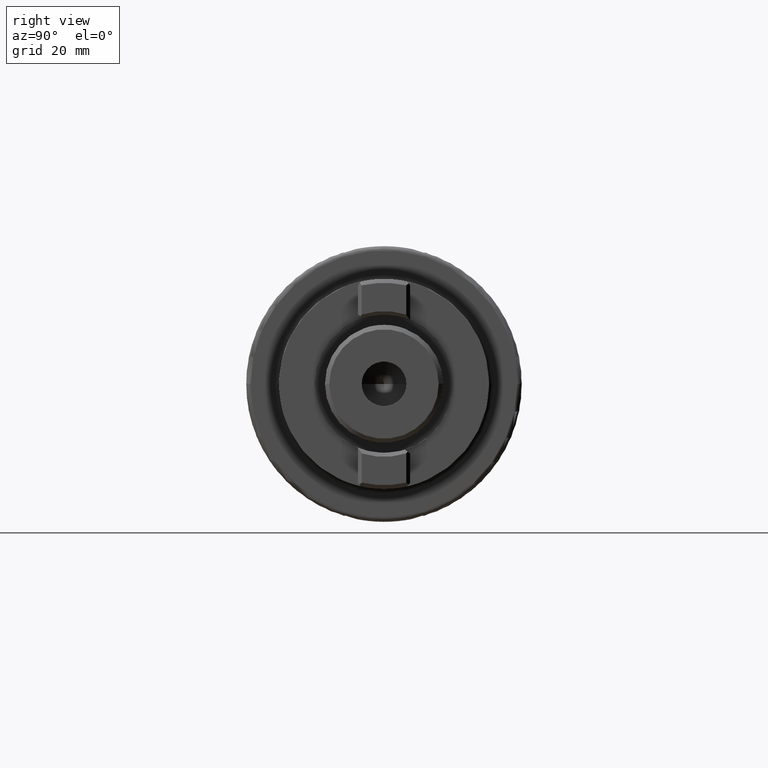
[diagram: clean part render]
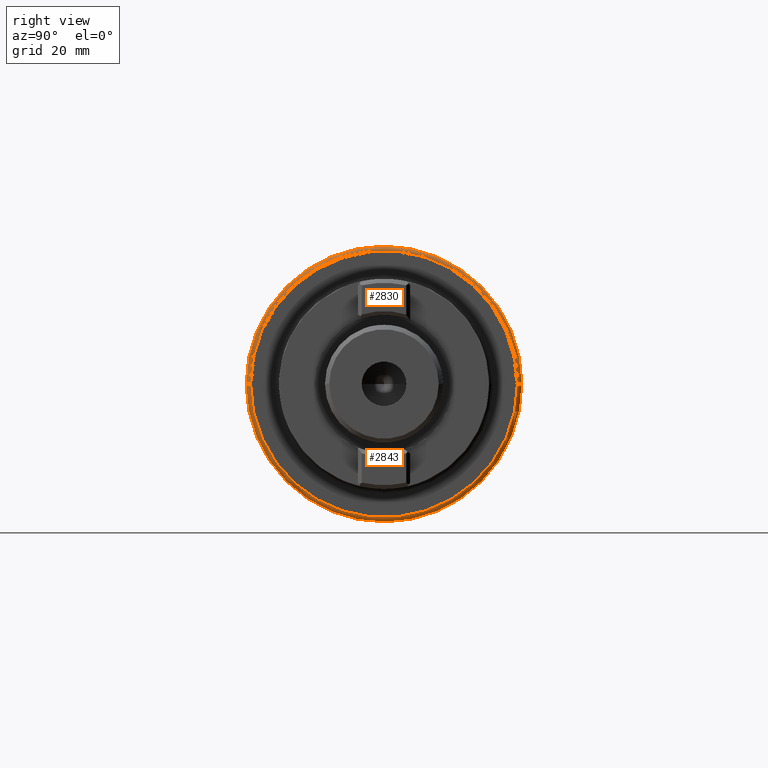
[diagram: same view with one multi-face feature highlighted, each face labeled with its STEP entity id]
A machine part, right view. The highlighted faces form ONE feature: a constant-radius fillet chain: 2 tangent blend faces with common blend radius 1 mm. The faces share edges in the B-rep.
Their STEP definitions:
[1] entity #2830 (Torus):
#792=CARTESIAN_POINT('',(2.6E1,0.E0,0.E0));
#793=DIRECTION('',(1.E0,0.E0,0.E0));
#794=DIRECTION('',(0.E0,1.E0,0.E0));
#795=AXIS2_PLACEMENT_3D('',#792,#793,#794);
#816=CARTESIAN_POINT('',(2.7E1,0.E0,0.E0));
#817=DIRECTION('',(1.E0,0.E0,0.E0));
#818=DIRECTION('',(0.E0,1.E0,0.E0));
#819=AXIS2_PLACEMENT_3D('',#816,#817,#818);
#821=CARTESIAN_POINT('',(2.6E1,3.04875E1,0.E0));
#822=DIRECTION('',(0.E0,0.E0,1.E0));
#823=DIRECTION('',(1.E0,0.E0,0.E0));
#824=AXIS2_PLACEMENT_3D('',#821,#822,#823);
#826=CARTESIAN_POINT('',(2.6E1,-3.04875E1,0.E0));
#827=DIRECTION('',(0.E0,0.E0,-1.E0));
#828=DIRECTION('',(1.E0,0.E0,0.E0));
#829=AXIS2_PLACEMENT_3D('',#826,#827,#828);
#1518=CARTESIAN_POINT('',(2.6E1,3.14875E1,0.E0));
#1519=VERTEX_POINT('',#1518);
#1520=CARTESIAN_POINT('',(2.6E1,-3.14875E1,0.E0));
#1521=VERTEX_POINT('',#1520);
#1588=CARTESIAN_POINT('',(2.7E1,3.04875E1,0.E0));
#1589=VERTEX_POINT('',#1588);
#1590=CARTESIAN_POINT('',(2.7E1,-3.04875E1,0.E0));
#1591=VERTEX_POINT('',#1590);
#2816=CARTESIAN_POINT('',(2.6E1,0.E0,0.E0));
#2817=DIRECTION('',(1.E0,0.E0,0.E0));
#2818=DIRECTION('',(0.E0,-1.E0,0.E0));
#2819=AXIS2_PLACEMENT_3D('',#2816,#2817,#2818);
#2820=TOROIDAL_SURFACE('',#2819,3.04875E1,1.E0);
#2822=ORIENTED_EDGE('',*,*,#2821,.F.);
#2824=ORIENTED_EDGE('',*,*,#2823,.T.);
#2826=ORIENTED_EDGE('',*,*,#2825,.T.);
#2827=ORIENTED_EDGE('',*,*,#2807,.F.);
#2828=EDGE_LOOP('',(#2822,#2824,#2826,#2827));
#2829=FACE_OUTER_BOUND('',#2828,.F.);
#2830=ADVANCED_FACE('',(#2829),#2820,.T.);
#796=CIRCLE('',#795,3.14875E1);
#820=CIRCLE('',#819,3.04875E1);
#825=CIRCLE('',#824,1.E0);
#830=CIRCLE('',#829,1.E0);
#2807=EDGE_CURVE('',#1519,#1521,#796,.T.);
#2821=EDGE_CURVE('',#1589,#1519,#825,.T.);
#2823=EDGE_CURVE('',#1589,#1591,#820,.T.);
#2825=EDGE_CURVE('',#1591,#1521,#830,.T.);
[2] entity #2843 (Torus):
#255=CARTESIAN_POINT('',(2.6E1,0.E0,0.E0));
#256=DIRECTION('',(-1.E0,0.E0,0.E0));
#257=DIRECTION('',(0.E0,1.E0,0.E0));
#258=AXIS2_PLACEMENT_3D('',#255,#256,#257);
#821=CARTESIAN_POINT('',(2.6E1,3.04875E1,0.E0));
#822=DIRECTION('',(0.E0,0.E0,1.E0));
#823=DIRECTION('',(1.E0,0.E0,0.E0));
#824=AXIS2_PLACEMENT_3D('',#821,#822,#823);
#826=CARTESIAN_POINT('',(2.6E1,-3.04875E1,0.E0));
#827=DIRECTION('',(0.E0,0.E0,-1.E0));
#828=DIRECTION('',(1.E0,0.E0,0.E0));
#829=AXIS2_PLACEMENT_3D('',#826,#827,#828);
#831=CARTESIAN_POINT('',(2.7E1,0.E0,0.E0));
#832=DIRECTION('',(-1.E0,0.E0,0.E0));
#833=DIRECTION('',(0.E0,1.E0,0.E0));
#834=AXIS2_PLACEMENT_3D('',#831,#832,#833);
#1518=CARTESIAN_POINT('',(2.6E1,3.14875E1,0.E0));
#1519=VERTEX_POINT('',#1518);
#1520=CARTESIAN_POINT('',(2.6E1,-3.14875E1,0.E0));
#1521=VERTEX_POINT('',#1520);
#1588=CARTESIAN_POINT('',(2.7E1,3.04875E1,0.E0));
#1589=VERTEX_POINT('',#1588);
#1590=CARTESIAN_POINT('',(2.7E1,-3.04875E1,0.E0));
#1591=VERTEX_POINT('',#1590);
#2831=CARTESIAN_POINT('',(2.6E1,0.E0,0.E0));
#2832=DIRECTION('',(1.E0,0.E0,0.E0));
#2833=DIRECTION('',(0.E0,-1.E0,0.E0));
#2834=AXIS2_PLACEMENT_3D('',#2831,#2832,#2833);
#2835=TOROIDAL_SURFACE('',#2834,3.04875E1,1.E0);
#2836=ORIENTED_EDGE('',*,*,#2821,.T.);
#2837=ORIENTED_EDGE('',*,*,#2098,.T.);
#2838=ORIENTED_EDGE('',*,*,#2825,.F.);
#2840=ORIENTED_EDGE('',*,*,#2839,.F.);
#2841=EDGE_LOOP('',(#2836,#2837,#2838,#2840));
#2842=FACE_OUTER_BOUND('',#2841,.F.);
#2843=ADVANCED_FACE('',(#2842),#2835,.T.);
#259=CIRCLE('',#258,3.14875E1);
#825=CIRCLE('',#824,1.E0);
#830=CIRCLE('',#829,1.E0);
#835=CIRCLE('',#834,3.04875E1);
#2098=EDGE_CURVE('',#1519,#1521,#259,.T.);
#2821=EDGE_CURVE('',#1589,#1519,#825,.T.);
#2825=EDGE_CURVE('',#1591,#1521,#830,.T.);
#2839=EDGE_CURVE('',#1589,#1591,#835,.T.);